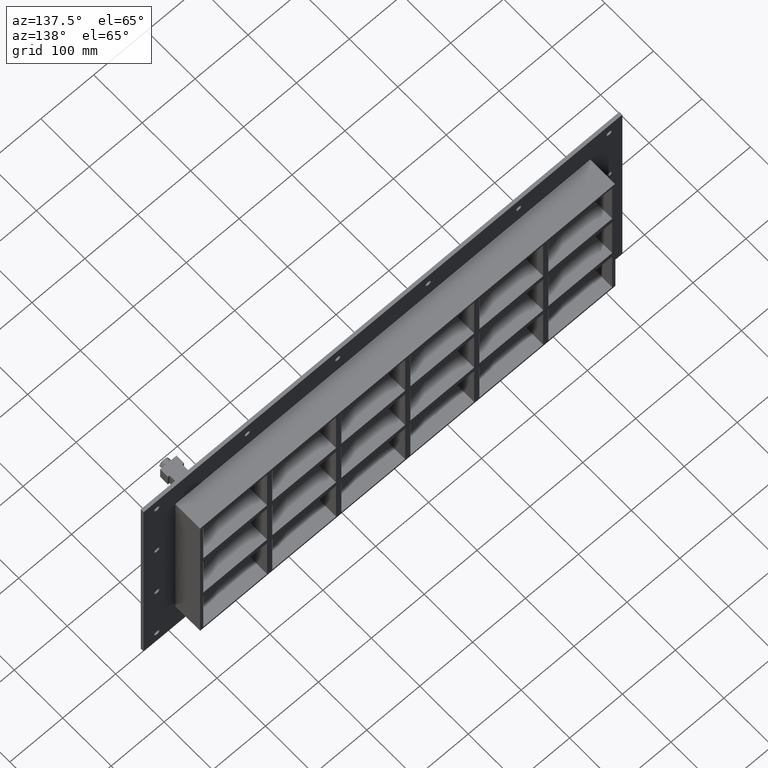
[diagram: clean part render]
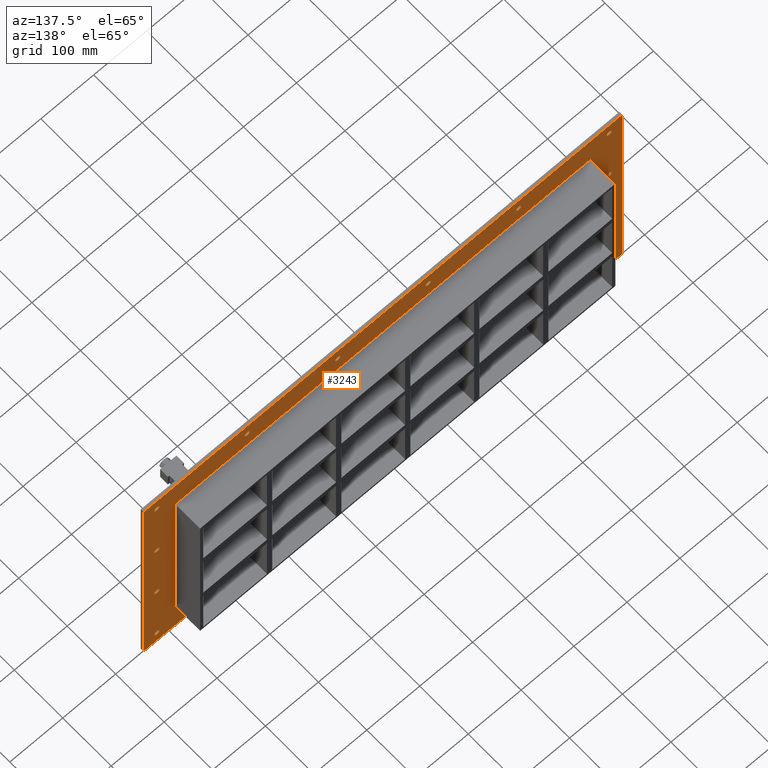
[diagram: same view with one face highlighted and labeled with its STEP entity id]
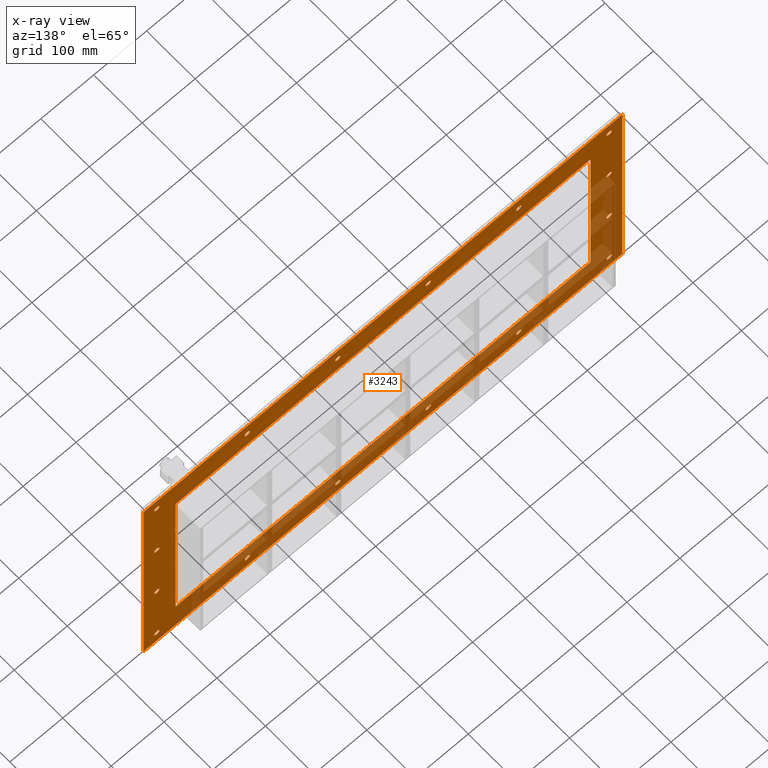
[diagram: x-ray of the same camera — body ghosted, the highlighted face saturated]
A machine part, auxiliary view. The second image highlights one B-rep face of the part: STEP entity #3243.
The next image is the same camera in x-ray: the body ghosted, the highlighted face saturated — about 30% of this face is hidden behind the body in this view.
In plain terms, the highlighted planar face has unit normal (0, 1, 0).
Its self-contained STEP definition (entity closure, byte-faithful):
#73=CARTESIAN_POINT('',(-432.5,5.999999999999943,-204.5));
#74=VERTEX_POINT('',#73);
#75=CARTESIAN_POINT('',(-427.5,5.999999999999943,-204.5));
#76=DIRECTION('',(0.0,-1.0,0.0));
#77=DIRECTION('',(1.0,0.0,0.0));
#78=AXIS2_PLACEMENT_3D('',#75,#76,#77);
#79=CIRCLE('',#78,5.0);
#80=EDGE_CURVE('',#74,#74,#79,.T.);
#101=CARTESIAN_POINT('',(422.5,5.999999999999943,-68.19999999999996));
#102=VERTEX_POINT('',#101);
#103=CARTESIAN_POINT('',(427.5,5.999999999999943,-68.19999999999996));
#104=DIRECTION('',(0.0,-1.0,0.0));
#105=DIRECTION('',(1.0,0.0,0.0));
#106=AXIS2_PLACEMENT_3D('',#103,#104,#105);
#107=CIRCLE('',#106,5.0);
#108=EDGE_CURVE('',#102,#102,#107,.T.);
#129=CARTESIAN_POINT('',(-432.5,5.999999999999943,-68.19999999999996));
#130=VERTEX_POINT('',#129);
#131=CARTESIAN_POINT('',(-427.5,5.999999999999943,-68.19999999999996));
#132=DIRECTION('',(0.0,-1.0,0.0));
#133=DIRECTION('',(1.0,0.0,0.0));
#134=AXIS2_PLACEMENT_3D('',#131,#132,#133);
#135=CIRCLE('',#134,5.0);
#136=EDGE_CURVE('',#130,#130,#135,.T.);
#157=CARTESIAN_POINT('',(422.5,5.999999999999943,68.100000000000051));
#158=VERTEX_POINT('',#157);
#159=CARTESIAN_POINT('',(427.5,5.999999999999943,68.100000000000051));
#160=DIRECTION('',(0.0,-1.0,0.0));
#161=DIRECTION('',(1.0,0.0,0.0));
#162=AXIS2_PLACEMENT_3D('',#159,#160,#161);
#163=CIRCLE('',#162,5.0);
#164=EDGE_CURVE('',#158,#158,#163,.T.);
#185=CARTESIAN_POINT('',(-432.5,5.999999999999943,68.100000000000051));
#186=VERTEX_POINT('',#185);
#187=CARTESIAN_POINT('',(-427.5,5.999999999999943,68.100000000000051));
#188=DIRECTION('',(0.0,-1.0,0.0));
#189=DIRECTION('',(1.0,0.0,0.0));
#190=AXIS2_PLACEMENT_3D('',#187,#188,#189);
#191=CIRCLE('',#190,5.0);
#192=EDGE_CURVE('',#186,#186,#191,.T.);
#213=CARTESIAN_POINT('',(-261.50000000000006,5.999999999999943,204.40000000000009));
#214=VERTEX_POINT('',#213);
#215=CARTESIAN_POINT('',(-256.50000000000006,5.999999999999943,204.40000000000009));
#216=DIRECTION('',(0.0,-1.0,0.0));
#217=DIRECTION('',(1.0,0.0,0.0));
#218=AXIS2_PLACEMENT_3D('',#215,#216,#217);
#219=CIRCLE('',#218,5.0);
#220=EDGE_CURVE('',#214,#214,#219,.T.);
#241=CARTESIAN_POINT('',(-261.50000000000006,5.999999999999943,-204.50000000000003));
#242=VERTEX_POINT('',#241);
#243=CARTESIAN_POINT('',(-256.50000000000006,5.999999999999943,-204.50000000000003));
#244=DIRECTION('',(0.0,-1.0,0.0));
#245=DIRECTION('',(1.0,0.0,0.0));
#246=AXIS2_PLACEMENT_3D('',#243,#244,#245);
#247=CIRCLE('',#246,5.0);
#248=EDGE_CURVE('',#242,#242,#247,.T.);
#269=CARTESIAN_POINT('',(-90.500000000000043,5.999999999999943,204.40000000000009));
#270=VERTEX_POINT('',#269);
#271=CARTESIAN_POINT('',(-85.500000000000043,5.999999999999943,204.40000000000009));
#272=DIRECTION('',(0.0,-1.0,0.0));
#273=DIRECTION('',(1.0,0.0,0.0));
#274=AXIS2_PLACEMENT_3D('',#271,#272,#273);
#275=CIRCLE('',#274,5.0);
#276=EDGE_CURVE('',#270,#270,#275,.T.);
#297=CARTESIAN_POINT('',(-90.500000000000043,5.999999999999943,-204.50000000000003));
#298=VERTEX_POINT('',#297);
#299=CARTESIAN_POINT('',(-85.500000000000043,5.999999999999943,-204.50000000000003));
#300=DIRECTION('',(0.0,-1.0,0.0));
#301=DIRECTION('',(1.0,0.0,0.0));
#302=AXIS2_PLACEMENT_3D('',#299,#300,#301);
#303=CIRCLE('',#302,5.0);
#304=EDGE_CURVE('',#298,#298,#303,.T.);
#325=CARTESIAN_POINT('',(80.499999999999972,5.999999999999943,204.40000000000009));
#326=VERTEX_POINT('',#325);
#327=CARTESIAN_POINT('',(85.499999999999972,5.999999999999943,204.40000000000009));
#328=DIRECTION('',(0.0,-1.0,0.0));
#329=DIRECTION('',(1.0,0.0,0.0));
#330=AXIS2_PLACEMENT_3D('',#327,#328,#329);
#331=CIRCLE('',#330,5.0);
#332=EDGE_CURVE('',#326,#326,#331,.T.);
#353=CARTESIAN_POINT('',(80.499999999999972,5.999999999999943,-204.50000000000003));
#354=VERTEX_POINT('',#353);
#355=CARTESIAN_POINT('',(85.499999999999972,5.999999999999943,-204.50000000000003));
#356=DIRECTION('',(0.0,-1.0,0.0));
#357=DIRECTION('',(1.0,0.0,0.0));
#358=AXIS2_PLACEMENT_3D('',#355,#356,#357);
#359=CIRCLE('',#358,5.0);
#360=EDGE_CURVE('',#354,#354,#359,.T.);
#381=CARTESIAN_POINT('',(251.5,5.999999999999943,204.40000000000009));
#382=VERTEX_POINT('',#381);
#383=CARTESIAN_POINT('',(256.5,5.999999999999943,204.40000000000009));
#384=DIRECTION('',(0.0,-1.0,0.0));
#385=DIRECTION('',(1.0,0.0,0.0));
#386=AXIS2_PLACEMENT_3D('',#383,#384,#385);
#387=CIRCLE('',#386,5.0);
#388=EDGE_CURVE('',#382,#382,#387,.T.);
#409=CARTESIAN_POINT('',(251.5,5.999999999999943,-204.50000000000003));
#410=VERTEX_POINT('',#409);
#411=CARTESIAN_POINT('',(256.5,5.999999999999943,-204.50000000000003));
#412=DIRECTION('',(0.0,-1.0,0.0));
#413=DIRECTION('',(1.0,0.0,0.0));
#414=AXIS2_PLACEMENT_3D('',#411,#412,#413);
#415=CIRCLE('',#414,5.0);
#416=EDGE_CURVE('',#410,#410,#415,.T.);
#437=CARTESIAN_POINT('',(422.5,5.999999999999943,-204.50000000000003));
#438=VERTEX_POINT('',#437);
#439=CARTESIAN_POINT('',(427.5,5.999999999999943,-204.50000000000003));
#440=DIRECTION('',(0.0,-1.0,0.0));
#441=DIRECTION('',(1.0,0.0,0.0));
#442=AXIS2_PLACEMENT_3D('',#439,#440,#441);
#443=CIRCLE('',#442,5.0);
#444=EDGE_CURVE('',#438,#438,#443,.T.);
#465=CARTESIAN_POINT('',(-432.5,5.999999999999943,204.40000000000009));
#466=VERTEX_POINT('',#465);
#467=CARTESIAN_POINT('',(-427.5,5.999999999999943,204.40000000000009));
#468=DIRECTION('',(0.0,-1.0,0.0));
#469=DIRECTION('',(1.0,0.0,0.0));
#470=AXIS2_PLACEMENT_3D('',#467,#468,#469);
#471=CIRCLE('',#470,5.0);
#472=EDGE_CURVE('',#466,#466,#471,.T.);
#493=CARTESIAN_POINT('',(422.5,5.999999999999943,204.40000000000009));
#494=VERTEX_POINT('',#493);
#495=CARTESIAN_POINT('',(427.5,5.999999999999943,204.40000000000009));
#496=DIRECTION('',(0.0,-1.0,0.0));
#497=DIRECTION('',(1.0,0.0,0.0));
#498=AXIS2_PLACEMENT_3D('',#495,#496,#497);
#499=CIRCLE('',#498,5.0);
#500=EDGE_CURVE('',#494,#494,#499,.T.);
#3086=CARTESIAN_POINT('',(0.0,6.000000000000001,0.0));
#3087=DIRECTION('',(0.0,1.0,0.0));
#3088=DIRECTION('',(0.0,0.0,1.0));
#3089=AXIS2_PLACEMENT_3D('',#3086,#3087,#3088);
#3090=PLANE('',#3089);
#3091=CARTESIAN_POINT('',(-452.49999999999994,6.000000000000001,229.50000000000003));
#3092=VERTEX_POINT('',#3091);
#3093=CARTESIAN_POINT('',(452.49999999999994,6.000000000000001,229.50000000000003));
#3094=VERTEX_POINT('',#3093);
#3095=CARTESIAN_POINT('',(-452.49999999999994,6.000000000000001,229.50000000000003));
#3096=DIRECTION('',(1.0,0.0,0.0));
#3097=VECTOR('',#3096,904.99999999999989);
#3098=LINE('',#3095,#3097);
#3099=EDGE_CURVE('',#3092,#3094,#3098,.T.);
#3100=ORIENTED_EDGE('',*,*,#3099,.T.);
#3101=CARTESIAN_POINT('',(452.49999999999994,6.000000000000001,-229.50000000000003));
#3102=VERTEX_POINT('',#3101);
#3103=CARTESIAN_POINT('',(452.49999999999994,6.000000000000001,229.50000000000003));
#3104=DIRECTION('',(0.0,0.0,-1.0));
#3105=VECTOR('',#3104,459.00000000000006);
#3106=LINE('',#3103,#3105);
#3107=EDGE_CURVE('',#3094,#3102,#3106,.T.);
#3108=ORIENTED_EDGE('',*,*,#3107,.T.);
#3109=CARTESIAN_POINT('',(-452.49999999999994,6.000000000000001,-229.50000000000003));
#3110=VERTEX_POINT('',#3109);
#3111=CARTESIAN_POINT('',(452.49999999999994,6.000000000000001,-229.50000000000003));
#3112=DIRECTION('',(-1.0,0.0,0.0));
#3113=VECTOR('',#3112,904.99999999999989);
#3114=LINE('',#3111,#3113);
#3115=EDGE_CURVE('',#3102,#3110,#3114,.T.);
#3116=ORIENTED_EDGE('',*,*,#3115,.T.);
#3117=CARTESIAN_POINT('',(-452.49999999999994,6.000000000000001,-229.50000000000003));
#3118=DIRECTION('',(0.0,0.0,1.0));
#3119=VECTOR('',#3118,459.00000000000006);
#3120=LINE('',#3117,#3119);
#3121=EDGE_CURVE('',#3110,#3092,#3120,.T.);
#3122=ORIENTED_EDGE('',*,*,#3121,.T.);
#3123=EDGE_LOOP('',(#3100,#3108,#3116,#3122));
#3124=FACE_OUTER_BOUND('',#3123,.T.);
#3125=ORIENTED_EDGE('',*,*,#80,.T.);
#3126=EDGE_LOOP('',(#3125));
#3127=FACE_BOUND('',#3126,.T.);
#3128=ORIENTED_EDGE('',*,*,#108,.T.);
#3129=EDGE_LOOP('',(#3128));
#3130=FACE_BOUND('',#3129,.T.);
#3131=ORIENTED_EDGE('',*,*,#136,.T.);
#3132=EDGE_LOOP('',(#3131));
#3133=FACE_BOUND('',#3132,.T.);
#3134=ORIENTED_EDGE('',*,*,#164,.T.);
#3135=EDGE_LOOP('',(#3134));
#3136=FACE_BOUND('',#3135,.T.);
#3137=ORIENTED_EDGE('',*,*,#192,.T.);
#3138=EDGE_LOOP('',(#3137));
#3139=FACE_BOUND('',#3138,.T.);
#3140=ORIENTED_EDGE('',*,*,#220,.T.);
#3141=EDGE_LOOP('',(#3140));
#3142=FACE_BOUND('',#3141,.T.);
#3143=ORIENTED_EDGE('',*,*,#248,.T.);
#3144=EDGE_LOOP('',(#3143));
#3145=FACE_BOUND('',#3144,.T.);
#3146=ORIENTED_EDGE('',*,*,#276,.T.);
#3147=EDGE_LOOP('',(#3146));
#3148=FACE_BOUND('',#3147,.T.);
#3149=ORIENTED_EDGE('',*,*,#304,.T.);
#3150=EDGE_LOOP('',(#3149));
#3151=FACE_BOUND('',#3150,.T.);
#3152=ORIENTED_EDGE('',*,*,#332,.T.);
#3153=EDGE_LOOP('',(#3152));
#3154=FACE_BOUND('',#3153,.T.);
#3155=ORIENTED_EDGE('',*,*,#360,.T.);
#3156=EDGE_LOOP('',(#3155));
#3157=FACE_BOUND('',#3156,.T.);
#3158=ORIENTED_EDGE('',*,*,#388,.T.);
#3159=EDGE_LOOP('',(#3158));
#3160=FACE_BOUND('',#3159,.T.);
#3161=ORIENTED_EDGE('',*,*,#416,.T.);
#3162=EDGE_LOOP('',(#3161));
#3163=FACE_BOUND('',#3162,.T.);
#3164=ORIENTED_EDGE('',*,*,#444,.T.);
#3165=EDGE_LOOP('',(#3164));
#3166=FACE_BOUND('',#3165,.T.);
#3167=ORIENTED_EDGE('',*,*,#472,.T.);
#3168=EDGE_LOOP('',(#3167));
#3169=FACE_BOUND('',#3168,.T.);
#3170=ORIENTED_EDGE('',*,*,#500,.T.);
#3171=EDGE_LOOP('',(#3170));
#3172=FACE_BOUND('',#3171,.T.);
#3173=CARTESIAN_POINT('',(-392.5,6.000000000000001,167.5));
#3174=VERTEX_POINT('',#3173);
#3175=CARTESIAN_POINT('',(-390.5,6.000000000000001,169.50000000000003));
#3176=VERTEX_POINT('',#3175);
#3177=CARTESIAN_POINT('',(-390.5,6.000000000000001,167.5));
#3178=DIRECTION('',(0.0,1.0,0.0));
#3179=DIRECTION('',(-0.707106781186548,0.0,0.707106781186548));
#3180=AXIS2_PLACEMENT_3D('',#3177,#3178,#3179);
#3181=CIRCLE('',#3180,2.0);
#3182=EDGE_CURVE('',#3174,#3176,#3181,.T.);
#3183=ORIENTED_EDGE('',*,*,#3182,.F.);
#3184=CARTESIAN_POINT('',(-392.5,6.000000000000001,-167.5));
#3185=VERTEX_POINT('',#3184);
#3186=CARTESIAN_POINT('',(-392.5,6.000000000000001,-167.5));
#3187=DIRECTION('',(0.0,0.0,1.0));
#3188=VECTOR('',#3187,335.0);
#3189=LINE('',#3186,#3188);
#3190=EDGE_CURVE('',#3185,#3174,#3189,.T.);
#3191=ORIENTED_EDGE('',*,*,#3190,.F.);
#3192=CARTESIAN_POINT('',(-390.5,6.000000000000001,-169.50000000000003));
#3193=VERTEX_POINT('',#3192);
#3194=CARTESIAN_POINT('',(-390.5,6.000000000000001,-167.5));
#3195=DIRECTION('',(0.0,1.0,0.0));
#3196=DIRECTION('',(-0.707106781186548,0.0,-0.707106781186548));
#3197=AXIS2_PLACEMENT_3D('',#3194,#3195,#3196);
#3198=CIRCLE('',#3197,2.0);
#3199=EDGE_CURVE('',#3193,#3185,#3198,.T.);
#3200=ORIENTED_EDGE('',*,*,#3199,.F.);
#3201=CARTESIAN_POINT('',(390.50000000000011,6.000000000000001,-169.50000000000003));
#3202=VERTEX_POINT('',#3201);
#3203=CARTESIAN_POINT('',(390.50000000000011,6.000000000000001,-169.50000000000003));
#3204=DIRECTION('',(-1.0,0.0,0.0));
#3205=VECTOR('',#3204,781.00000000000011);
#3206=LINE('',#3203,#3205);
#3207=EDGE_CURVE('',#3202,#3193,#3206,.T.);
#3208=ORIENTED_EDGE('',*,*,#3207,.F.);
#3209=CARTESIAN_POINT('',(392.50000000000006,6.000000000000001,-167.5));
#3210=VERTEX_POINT('',#3209);
#3211=CARTESIAN_POINT('',(390.50000000000011,6.000000000000001,-167.5));
#3212=DIRECTION('',(0.0,1.0,0.0));
#3213=DIRECTION('',(0.707106781186522,0.0,-0.707106781186573));
#3214=AXIS2_PLACEMENT_3D('',#3211,#3212,#3213);
#3215=CIRCLE('',#3214,2.0);
#3216=EDGE_CURVE('',#3210,#3202,#3215,.T.);
#3217=ORIENTED_EDGE('',*,*,#3216,.F.);
#3218=CARTESIAN_POINT('',(392.50000000000006,6.000000000000001,167.50000000000003));
#3219=VERTEX_POINT('',#3218);
#3220=CARTESIAN_POINT('',(392.50000000000006,6.000000000000001,167.50000000000006));
#3221=DIRECTION('',(0.0,0.0,-1.0));
#3222=VECTOR('',#3221,335.00000000000006);
#3223=LINE('',#3220,#3222);
#3224=EDGE_CURVE('',#3219,#3210,#3223,.T.);
#3225=ORIENTED_EDGE('',*,*,#3224,.F.);
#3226=CARTESIAN_POINT('',(390.50000000000006,6.000000000000001,169.50000000000003));
#3227=VERTEX_POINT('',#3226);
#3228=CARTESIAN_POINT('',(390.50000000000006,6.000000000000001,167.50000000000003));
#3229=DIRECTION('',(0.0,1.0,0.0));
#3230=DIRECTION('',(0.70710678118656,0.0,0.707106781186535));
#3231=AXIS2_PLACEMENT_3D('',#3228,#3229,#3230);
#3232=CIRCLE('',#3231,2.0);
#3233=EDGE_CURVE('',#3227,#3219,#3232,.T.);
#3234=ORIENTED_EDGE('',*,*,#3233,.F.);
#3235=CARTESIAN_POINT('',(-390.5,6.000000000000001,169.50000000000003));
#3236=DIRECTION('',(1.0,0.0,0.0));
#3237=VECTOR('',#3236,781.0);
#3238=LINE('',#3235,#3237);
#3239=EDGE_CURVE('',#3176,#3227,#3238,.T.);
#3240=ORIENTED_EDGE('',*,*,#3239,.F.);
#3241=EDGE_LOOP('',(#3183,#3191,#3200,#3208,#3217,#3225,#3234,#3240));
#3242=FACE_BOUND('',#3241,.T.);
#3243=ADVANCED_FACE('',(#3124,#3127,#3130,#3133,#3136,#3139,#3142,#3145,#3148,#3151,#3154,#3157,#3160,#3163,#3166,#3169,#3172,#3242),#3090,.T.);